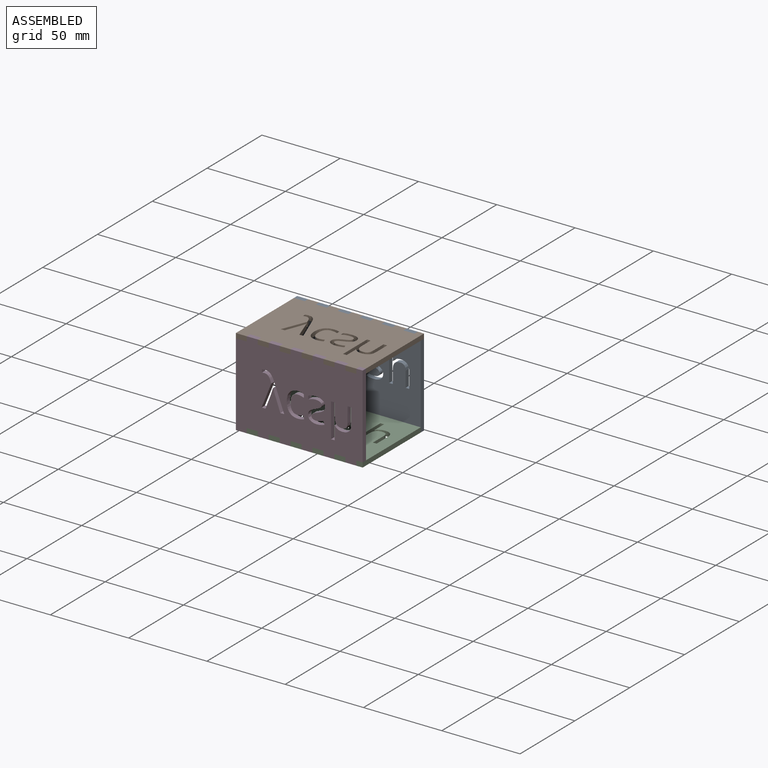
[diagram: assembled view]
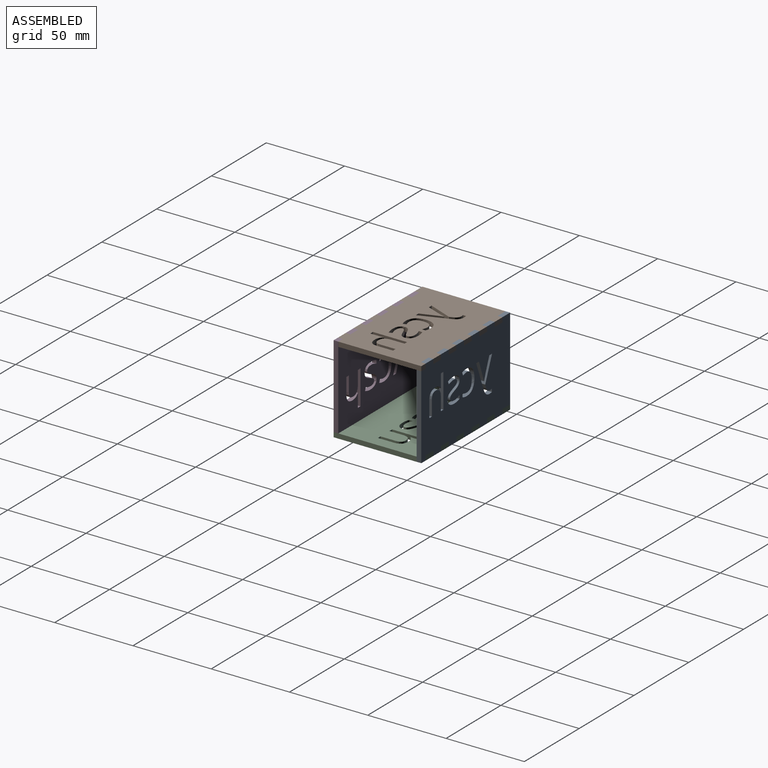
[diagram: assembled view, second angle]
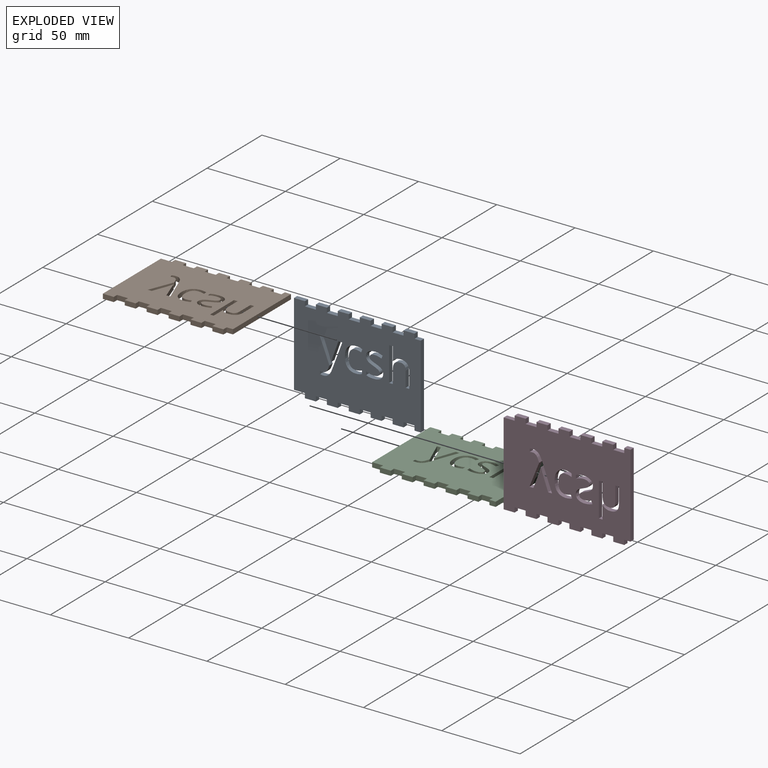
[diagram: exploded view]
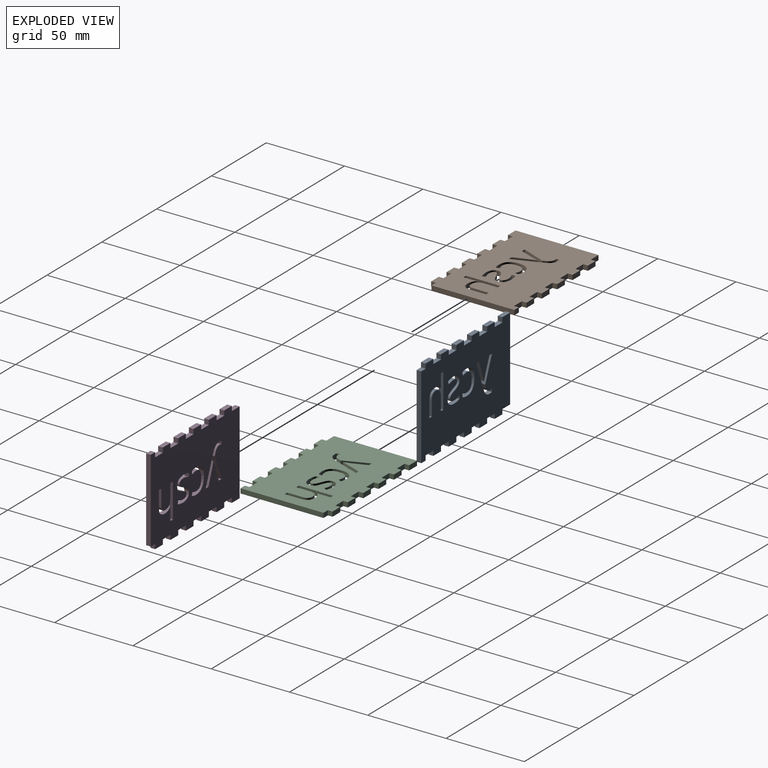
[diagram: exploded view, second angle]
ASSEMBLY  parts=4 mates=3
PART A: 124 faces, bbox 81x56x3 mm
  f0: plane 81x56mm, normal (0,0,1), area 3964.6mm2, adj f2,f3,f4,f5,f6,f7,f8,f9
  f1: plane 81x56mm, normal (0,0,-1), area 3964.6mm2, adj f2,f3,f4,f5,f6,f7,f8,f9
  f2: plane 7x3mm, normal (0,1,0), area 21mm2, adj f0,f1,f3,f49
  f3: plane 53x3mm, normal (-1,0,0), area 159mm2, adj f0,f1,f2,f4
  f4: plane 7x3mm, normal (0,-1,0), area 21mm2, adj f0,f1,f3,f5
  f5: plane 3x3mm, normal (-1,0,0), area 9mm2, adj f0,f1,f4,f6
  f6: plane 7x3mm, normal (0,-1,0), area 21mm2, adj f0,f1,f5,f7
  f7: plane 3x3mm, normal (1,0,0), area 9mm2, adj f0,f1,f6,f8
  f8: plane 7x3mm, normal (0,-1,0), area 21mm2, adj f0,f1,f7,f9
  f9: plane 3x3mm, normal (-1,0,0), area 9mm2, adj f0,f1,f8,f10
  f10: plane 7x3mm, normal (0,-1,0), area 21mm2, adj f0,f1,f9,f11
  f11: plane 3x3mm, normal (1,0,0), area 9mm2, adj f0,f1,f10,f12
  f12: plane 7x3mm, normal (0,-1,0), area 21mm2, adj f0,f1,f11,f13
  f13: plane 3x3mm, normal (-1,0,0), area 9mm2, adj f0,f1,f12,f14
  f14: plane 7x3mm, normal (0,-1,0), area 21mm2, adj f0,f1,f13,f15
  f15: plane 3x3mm, normal (1,0,0), area 9mm2, adj f0,f1,f14,f16
  f16: plane 7x3mm, normal (0,-1,0), area 21mm2, adj f0,f1,f15,f17
  f17: plane 3x3mm, normal (-1,0,0), area 9mm2, adj f0,f1,f16,f18
  f18: plane 7x3mm, normal (0,-1,0), area 21mm2, adj f0,f1,f17,f19
  f19: plane 3x3mm, normal (1,0,0), area 9mm2, adj f0,f1,f18,f20
  f20: plane 7x3mm, normal (0,-1,0), area 21mm2, adj f0,f1,f19,f21
  f21: plane 3x3mm, normal (-1,0,0), area 9mm2, adj f0,f1,f20,f22
  f22: plane 7x3mm, normal (0,-1,0), area 21mm2, adj f0,f1,f21,f23
  f23: plane 3x3mm, normal (1,0,0), area 9mm2, adj f0,f1,f22,f24
  f24: plane 7x3mm, normal (0,-1,0), area 21mm2, adj f0,f1,f23,f25
  f25: plane 3x3mm, normal (-1,0,0), area 9mm2, adj f0,f1,f24,f26
  f26: plane 4x3mm, normal (0,-1,0), area 12mm2, adj f0,f1,f25,f27
  f27: plane 53x3mm, normal (1,0,0), area 159mm2, adj f0,f1,f26,f28
  f28: plane 4x3mm, normal (0,1,0), area 12mm2, adj f0,f1,f27,f29
  f29: plane 3x3mm, normal (1,0,0), area 9mm2, adj f0,f1,f28,f30
  f30: plane 7x3mm, normal (0,1,0), area 21mm2, adj f0,f1,f29,f31
  f31: plane 3x3mm, normal (-1,0,0), area 9mm2, adj f0,f1,f30,f32
  f32: plane 7x3mm, normal (0,1,0), area 21mm2, adj f0,f1,f31,f33
  f33: plane 3x3mm, normal (1,0,0), area 9mm2, adj f0,f1,f32,f34
  f34: plane 7x3mm, normal (0,1,0), area 21mm2, adj f0,f1,f33,f35
  f35: plane 3x3mm, normal (-1,0,0), area 9mm2, adj f0,f1,f34,f36
  f36: plane 7x3mm, normal (0,1,0), area 21mm2, adj f0,f1,f35,f37
  f37: plane 3x3mm, normal (1,0,0), area 9mm2, adj f0,f1,f36,f38
  f38: plane 7x3mm, normal (0,1,0), area 21mm2, adj f0,f1,f37,f39
  f39: plane 3x3mm, normal (-1,0,0), area 9mm2, adj f0,f1,f38,f40
  f40: plane 7x3mm, normal (0,1,0), area 21mm2, adj f0,f1,f39,f41
  f41: plane 3x3mm, normal (1,0,0), area 9mm2, adj f0,f1,f40,f42
  f42: plane 7x3mm, normal (0,1,0), area 21mm2, adj f0,f1,f41,f43
  f43: plane 3x3mm, normal (-1,0,0), area 9mm2, adj f0,f1,f42,f44
  f44: plane 7x3mm, normal (0,1,0), area 21mm2, adj f0,f1,f43,f45
  f45: plane 3x3mm, normal (1,0,0), area 9mm2, adj f0,f1,f44,f46
  f46: plane 7x3mm, normal (0,1,0), area 21mm2, adj f0,f1,f45,f47
  f47: plane 3x3mm, normal (-1,0,0), area 9mm2, adj f0,f1,f46,f48
  f48: plane 7x3mm, normal (0,1,0), area 21mm2, adj f0,f1,f47,f49
  f49: plane 3x3mm, normal (1,0,0), area 9mm2, adj f0,f1,f2,f48
  f50: plane 9.96x3mm, normal (1,0,0), area 29.9mm2, adj f0,f1,f51,f67
  f51: plane 3x2.33mm, normal (0,1,0), area 7mm2, adj f0,f1,f50,f52
  f52: plane 10.04x3mm, normal (-1,0,0), area 30.1mm2, adj f0,f1,f51,f53
  f53: extruded ~4.26x3mm, area 13.8mm2, adj f0,f1,f52,f54
  f54: extruded ~4.23x3mm, area 13.7mm2, adj f0,f1,f53,f55
  f55: extruded ~3x2.9mm, area 9mm2, adj f0,f1,f54,f56
  f56: extruded ~3x1.96mm, area 8mm2, adj f0,f1,f55,f57
  f57: plane 3x0.14mm, normal (0,-1,0), area 0.4mm2, adj f0,f1,f56,f58
  f58: extruded ~3x1.98mm, area 6mm2, adj f0,f1,f57,f59
  f59: plane 6.61x3mm, normal (-1,0,0), area 19.8mm2, adj f0,f1,f58,f60
  f60: plane 3x2.33mm, normal (0,-1,0), area 7mm2, adj f0,f1,f59,f61
  f61: plane 21.85x3mm, normal (1,0,0), area 65.5mm2, adj f0,f1,f60,f62
  f62: plane 3x2.33mm, normal (0,1,0), area 7mm2, adj f0,f1,f61,f63
  f63: plane 8.05x3mm, normal (-1,0,0), area 24.1mm2, adj f0,f1,f62,f64
  f64: extruded ~4.32x3mm, area 13.7mm2, adj f0,f1,f63,f65
  f65: extruded ~3.54x3mm, area 11.7mm2, adj f0,f1,f64,f66
  f66: extruded ~3x2.68mm, area 8.8mm2, adj f0,f1,f65,f67
  f67: extruded ~3x2.81mm, area 9mm2, adj f0,f1,f50,f66
  f68: extruded ~3.31x3mm, area 11.5mm2, adj f0,f1,f69,f92
  f69: extruded ~3x2.54mm, area 8.4mm2, adj f0,f1,f68,f70
  f70: extruded ~3.7x3mm, area 12.7mm2, adj f0,f1,f69,f71
  f71: extruded ~3x2.7mm, area 8.8mm2, adj f0,f1,f70,f72
  f72: extruded ~3x1.02mm, area 4mm2, adj f0,f1,f71,f73
  f73: extruded ~3x1.05mm, area 3.4mm2, adj f0,f1,f72,f74
  f74: extruded ~3x1.43mm, area 5.2mm2, adj f0,f1,f73,f75
  f75: extruded ~3x2.5mm, area 7.8mm2, adj f0,f1,f74,f76
  f76: extruded ~4.2x3mm, area 13mm2, adj f0,f1,f75,f77
  f77: plane 3x1.9mm, normal (-0.92,0.4,0), area 6.2mm2, adj f0,f1,f76,f78
  f78: extruded ~4.86x3mm, area 15mm2, adj f0,f1,f77,f79
  f79: extruded ~4.2x3mm, area 13.2mm2, adj f0,f1,f78,f80
  f80: extruded ~3x2.97mm, area 10.5mm2, adj f0,f1,f79,f81
  f81: extruded ~3x1.81mm, area 5.7mm2, adj f0,f1,f80,f82
  f82: extruded ~3x1.35mm, area 5.8mm2, adj f0,f1,f81,f83
  f83: extruded ~3.05x3mm, area 10.1mm2, adj f0,f1,f82,f84
  f84: extruded ~3.04x3mm, area 10.2mm2, adj f0,f1,f83,f85
  f85: extruded ~3x1.54mm, area 5.4mm2, adj f0,f1,f84,f86
  f86: extruded ~3x1.78mm, area 6.4mm2, adj f0,f1,f85,f87
  f87: extruded ~3x2.81mm, area 8.7mm2, adj f0,f1,f86,f88
  f88: extruded ~3x2.45mm, area 7.4mm2, adj f0,f1,f87,f89
  f89: extruded ~3x2.38mm, area 7.6mm2, adj f0,f1,f88,f90
  f90: plane 3x2.16mm, normal (1,0,0), area 6.5mm2, adj f0,f1,f89,f91
  f91: extruded ~4.77x3mm, area 14.8mm2, adj f0,f1,f90,f92
  f92: extruded ~4.49x3mm, area 14.2mm2, adj f0,f1,f68,f91
  f93: extruded ~5.18x3mm, area 17.2mm2, adj f0,f1,f94,f107
  f94: extruded ~3.89x3mm, area 12mm2, adj f0,f1,f93,f95
  f95: plane 3x2.06mm, normal (-1,0,0), area 6.2mm2, adj f0,f1,f94,f96
  f96: extruded ~3.94x3mm, area 12.2mm2, adj f0,f1,f95,f97
  f97: extruded ~3.39x3mm, area 11.6mm2, adj f0,f1,f96,f98
  f98: extruded ~4.35x3mm, area 13.7mm2, adj f0,f1,f97,f99
  f99: extruded ~5.98x4.69mm, area 26.1mm2, adj f0,f1,f98,f100
  f100: extruded ~3x1.61mm, area 4.9mm2, adj f0,f1,f99,f101
  f101: extruded ~3x1.68mm, area 5.3mm2, adj f0,f1,f100,f102
  f102: plane 3x1.98mm, normal (-0.94,0.34,0), area 6.3mm2, adj f0,f1,f101,f103
  f103: extruded ~3x1.74mm, area 5.5mm2, adj f0,f1,f102,f104
  f104: extruded ~3x2.22mm, area 6.7mm2, adj f0,f1,f103,f105
  f105: extruded ~5.3x3mm, area 17.7mm2, adj f0,f1,f104,f106
  f106: extruded ~5.97x3mm, area 19.2mm2, adj f0,f1,f105,f107
  f107: extruded ~5.82x3mm, area 18.7mm2, adj f0,f1,f93,f106
  f108: plane 3x2.5mm, normal (0,-1,0), area 7.5mm2, adj f0,f1,f109,f123
  f109: plane 15.47x6.21mm, normal (0.93,0.37,0), area 50mm2, adj f0,f1,f108,f110
  f110: plane 3x2.19mm, normal (0.93,-0.37,0), area 7.1mm2, adj f0,f1,f109,f111
  f111: extruded ~3.43x3mm, area 14mm2, adj f0,f1,f110,f112
  f112: extruded ~3x1.73mm, area 5.2mm2, adj f0,f1,f111,f113
  f113: plane 3x1.86mm, normal (1,0,0), area 5.6mm2, adj f0,f1,f112,f114
  f114: extruded ~3x2.11mm, area 6.4mm2, adj f0,f1,f113,f115
  f115: extruded ~3.22x3mm, area 10.4mm2, adj f0,f1,f114,f116
  f116: extruded ~3.69x3mm, area 13.2mm2, adj f0,f1,f115,f117
  f117: plane 17.52x6.61mm, normal (-0.94,0.35,0), area 56.2mm2, adj f0,f1,f116,f118
  f118: plane 3x2.5mm, normal (0,-1,0), area 7.5mm2, adj f0,f1,f117,f119
  f119: extruded ~10.66x3.81mm, area 34mm2, adj f0,f1,f118,f120
  f120: extruded ~3x2.45mm, area 7.7mm2, adj f0,f1,f119,f121
  f121: plane 3x0.11mm, normal (0,-1,0), area 0.3mm2, adj f0,f1,f120,f122
  f122: extruded ~4.34x3mm, area 13.7mm2, adj f0,f1,f121,f123
  f123: plane 8.77x3.37mm, normal (-0.93,-0.36,0), area 28.2mm2, adj f0,f1,f108,f122
PART B: same geometry as A
PART C: same geometry as A
PART D: same geometry as A
PLACE A rot(axis=(1,0,0),90deg) t=(40.87,-153.91,35.6)mm
PLACE B rot(axis=(1,0,0),180deg) t=(40.87,-181.91,63.6)mm
PLACE C t=(40.87,-181.91,7.6)mm
PLACE D rot(axis=(-1,0,0),90deg) t=(40.87,-209.91,35.6)mm
MATE fastened A.f49 <-> B.f5  axis (1,0,0) through (7.37,-155.41,62.1)mm
MATE fastened A.f23 <-> C.f31  axis (1,0,0) through (70.37,-155.41,9.1)mm
MATE fastened C.f5 <-> D.f49  axis (-1,0,0) through (7.37,-208.41,9.1)mm
